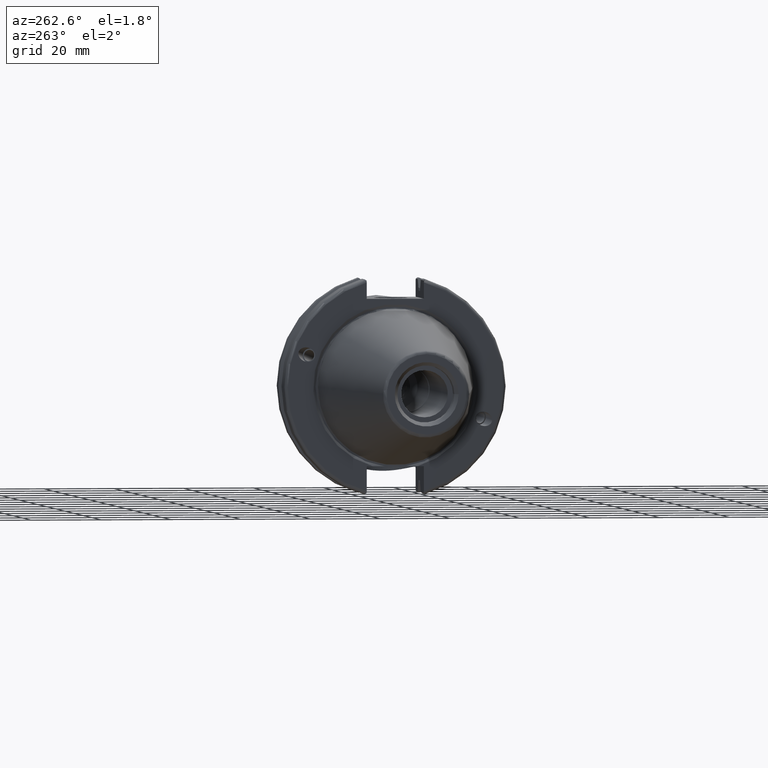
[diagram: clean part render]
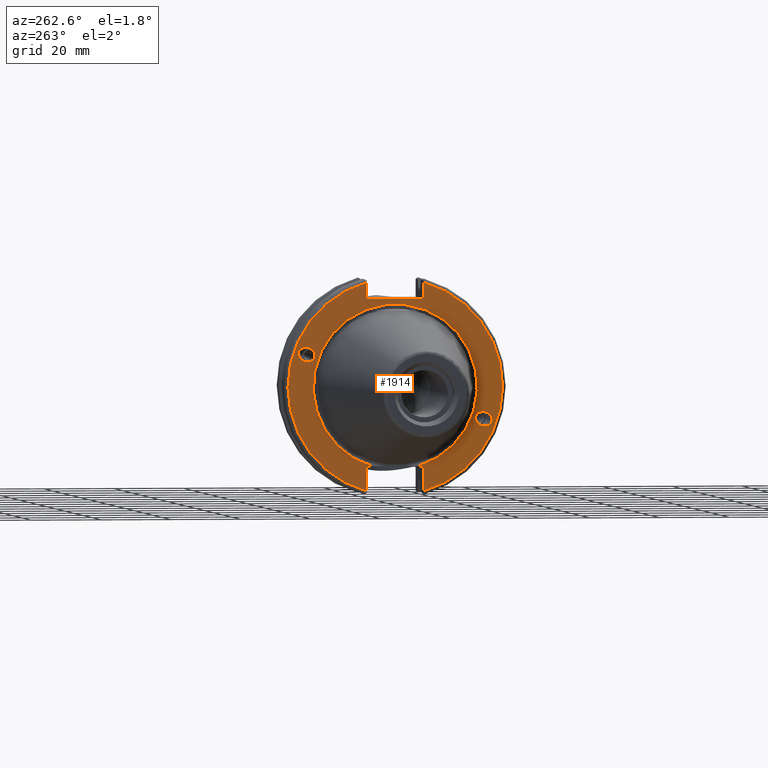
[diagram: same view with one face highlighted and labeled with its STEP entity id]
A machine part, auxiliary view. The second image highlights one B-rep face of the part: STEP entity #1914.
In plain terms, the highlighted planar face has unit normal (-1, 0, 0).
Its self-contained STEP definition (entity closure, byte-faithful):
#41=ELLIPSE('',#2105,2.4415491775229,1.99999999999999);
#50=ELLIPSE('',#2149,2.4415491775229,1.99999999999999);
#127=FACE_BOUND('',#571,.T.);
#128=FACE_BOUND('',#572,.T.);
#150=PLANE('',#2165);
#227=LINE('',#3566,#322);
#231=LINE('',#3612,#326);
#239=LINE('',#3648,#334);
#241=LINE('',#3672,#336);
#242=LINE('',#3676,#337);
#243=LINE('',#3678,#338);
#244=LINE('',#3681,#339);
#322=VECTOR('',#2656,10.);
#326=VECTOR('',#2668,10.);
#334=VECTOR('',#2678,10.);
#336=VECTOR('',#2688,10.);
#337=VECTOR('',#2691,10.);
#338=VECTOR('',#2692,10.);
#339=VECTOR('',#2695,10.);
#453=FACE_OUTER_BOUND('',#570,.T.);
#570=EDGE_LOOP('',(#1643,#1644,#1645,#1646,#1647,#1648,#1649,#1650,#1651,
#1652));
#571=EDGE_LOOP('',(#1653));
#572=EDGE_LOOP('',(#1654));
#714=CIRCLE('',#2164,30.75);
#715=CIRCLE('',#2166,30.75);
#716=CIRCLE('',#2167,23.5);
#837=VERTEX_POINT('',#3296);
#878=VERTEX_POINT('',#3499);
#890=VERTEX_POINT('',#3558);
#891=VERTEX_POINT('',#3565);
#897=VERTEX_POINT('',#3609);
#898=VERTEX_POINT('',#3611);
#906=VERTEX_POINT('',#3640);
#907=VERTEX_POINT('',#3647);
#910=VERTEX_POINT('',#3673);
#911=VERTEX_POINT('',#3675);
#912=VERTEX_POINT('',#3677);
#913=VERTEX_POINT('',#3679);
#1073=EDGE_CURVE('',#837,#837,#41,.T.);
#1130=EDGE_CURVE('',#878,#878,#50,.T.);
#1147=EDGE_CURVE('',#891,#890,#227,.T.);
#1157=EDGE_CURVE('',#898,#897,#231,.T.);
#1169=EDGE_CURVE('',#907,#906,#239,.T.);
#1174=EDGE_CURVE('',#898,#906,#714,.T.);
#1175=EDGE_CURVE('',#897,#891,#241,.T.);
#1176=EDGE_CURVE('',#910,#890,#715,.T.);
#1177=EDGE_CURVE('',#910,#911,#242,.T.);
#1178=EDGE_CURVE('',#911,#912,#243,.T.);
#1179=EDGE_CURVE('',#912,#913,#716,.T.);
#1180=EDGE_CURVE('',#913,#907,#244,.T.);
#1643=ORIENTED_EDGE('',*,*,#1174,.F.);
#1644=ORIENTED_EDGE('',*,*,#1157,.T.);
#1645=ORIENTED_EDGE('',*,*,#1175,.T.);
#1646=ORIENTED_EDGE('',*,*,#1147,.T.);
#1647=ORIENTED_EDGE('',*,*,#1176,.F.);
#1648=ORIENTED_EDGE('',*,*,#1177,.T.);
#1649=ORIENTED_EDGE('',*,*,#1178,.T.);
#1650=ORIENTED_EDGE('',*,*,#1179,.T.);
#1651=ORIENTED_EDGE('',*,*,#1180,.T.);
#1652=ORIENTED_EDGE('',*,*,#1169,.T.);
#1653=ORIENTED_EDGE('',*,*,#1073,.T.);
#1654=ORIENTED_EDGE('',*,*,#1130,.T.);
#1914=ADVANCED_FACE('',(#453,#127,#128),#150,.T.);
#2105=AXIS2_PLACEMENT_3D('',#3298,#2529,#2530);
#2149=AXIS2_PLACEMENT_3D('',#3501,#2633,#2634);
#2164=AXIS2_PLACEMENT_3D('',#3670,#2684,#2685);
#2165=AXIS2_PLACEMENT_3D('',#3671,#2686,#2687);
#2166=AXIS2_PLACEMENT_3D('',#3674,#2689,#2690);
#2167=AXIS2_PLACEMENT_3D('',#3680,#2693,#2694);
#2529=DIRECTION('center_axis',(1.,0.,0.));
#2530=DIRECTION('ref_axis',(0.,-0.939692620785908,-0.342020143325669));
#2633=DIRECTION('center_axis',(1.,0.,0.));
#2634=DIRECTION('ref_axis',(0.,0.939692620785908,0.342020143325669));
#2656=DIRECTION('',(0.,0.,1.));
#2668=DIRECTION('',(0.,0.,-1.));
#2678=DIRECTION('',(0.,0.,-1.));
#2684=DIRECTION('center_axis',(1.,0.,0.));
#2685=DIRECTION('ref_axis',(0.,-1.,1.60812264967664E-16));
#2686=DIRECTION('center_axis',(-1.,0.,0.));
#2687=DIRECTION('ref_axis',(0.,0.,1.));
#2688=DIRECTION('',(0.,1.,0.));
#2689=DIRECTION('center_axis',(1.,0.,0.));
#2690=DIRECTION('ref_axis',(0.,1.,1.60812264967664E-16));
#2691=DIRECTION('',(0.,0.,1.));
#2692=DIRECTION('',(0.,-1.,0.));
#2693=DIRECTION('center_axis',(1.,0.,0.));
#2694=DIRECTION('ref_axis',(0.,0.,-1.));
#2695=DIRECTION('',(0.,-1.,0.));
#3296=CARTESIAN_POINT('',(1.,-23.0773950158154,-8.39948487016));
#3298=CARTESIAN_POINT('Origin',(1.,-25.3717007612195,-9.23454386979305));
#3499=CARTESIAN_POINT('',(1.,23.0773950158154,8.39948487016001));
#3501=CARTESIAN_POINT('Origin',(1.,25.3717007612195,9.23454386979306));
#3558=CARTESIAN_POINT('',(1.,8.19,29.6392712461019));
#3565=CARTESIAN_POINT('',(1.,8.19,25.));
#3566=CARTESIAN_POINT('',(1.,8.19,12.5));
#3609=CARTESIAN_POINT('',(1.,-8.19,25.));
#3611=CARTESIAN_POINT('',(1.,-8.18999999999999,29.6392712461019));
#3612=CARTESIAN_POINT('',(1.,-8.18999999999999,12.5));
#3640=CARTESIAN_POINT('',(1.,-8.19,-29.6392712461019));
#3647=CARTESIAN_POINT('',(1.,-8.19,-22.6));
#3648=CARTESIAN_POINT('',(1.,-8.19,-11.3));
#3670=CARTESIAN_POINT('Origin',(1.,0.,0.));
#3671=CARTESIAN_POINT('Origin',(1.,31.75,0.));
#3672=CARTESIAN_POINT('',(1.,15.875,25.));
#3673=CARTESIAN_POINT('',(1.,8.18999999999999,-29.6392712461019));
#3674=CARTESIAN_POINT('Origin',(1.,0.,0.));
#3675=CARTESIAN_POINT('',(0.999999999999998,8.19,-22.6));
#3676=CARTESIAN_POINT('',(1.,8.18999999999999,-11.3));
#3677=CARTESIAN_POINT('',(0.999999999999997,6.4412731660752,-22.6));
#3678=CARTESIAN_POINT('',(1.,15.875,-22.6));
#3679=CARTESIAN_POINT('',(1.,-6.44127316607517,-22.6));
#3680=CARTESIAN_POINT('Origin',(0.999999999999996,0.,0.));
#3681=CARTESIAN_POINT('',(1.,15.875,-22.6));